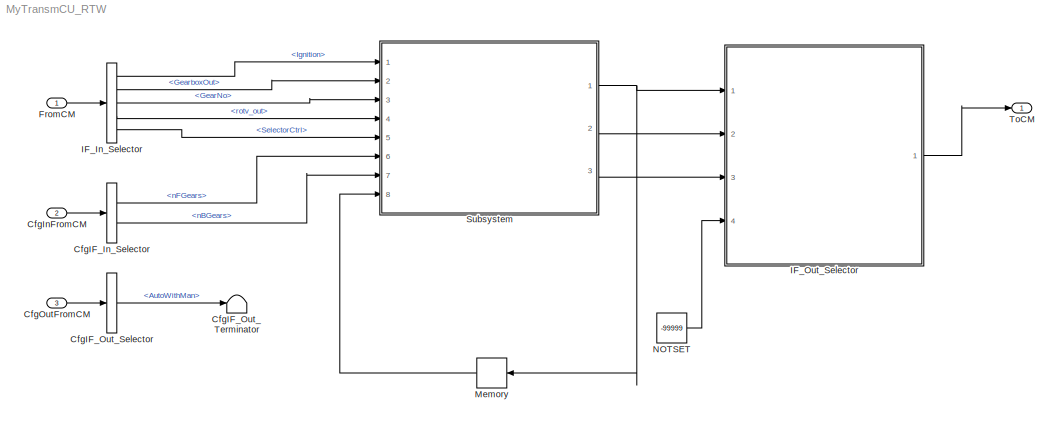
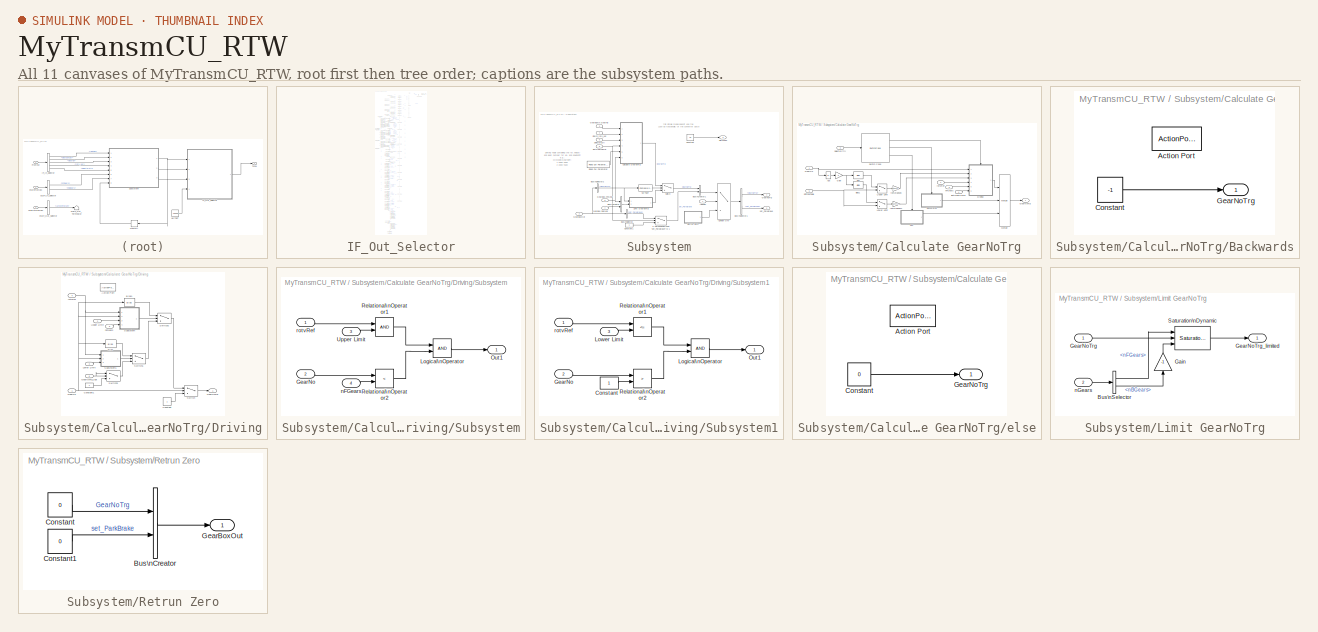
[diagram: thumbnail index - all 11 canvases of the model, root first then tree order]
MODEL MyTransmCU_RTW
KIND model
CONFIG InitFcn = vehicle = 'Car'; if ~length(which('cmself')), cmenv; end\nMyTransmCU_RTW_bus
CONFIG PreLoadFcn = vehicle = 'Car'; if ~length(which('cmself')), cmenv; end\nMyTransmCU_RTW_bus
BLOCK [BusSelector] CfgIF_In_Selector
  OutputSignals = Gearbox.GB0.nFGears,Gearbox.GB0.nBGears
  Ports = [1, 2]
  SID = 9
BLOCK [BusSelector] CfgIF_Out_Selector
  OutputSignals = AutoWithMan
  Ports = [1, 1]
  SID = 12
BLOCK [Terminator] CfgIF_Out_Terminator
  SID = 13
BLOCK [Inport] CfgInFromCM
  OutDataTypeStr = Bus: cmPTTransmCUCfgIn
  Port = 2
  SID = 8
BLOCK [Inport] CfgOutFromCM
  OutDataTypeStr = Bus: cmPTTransmCUCfgOut
  Port = 3
  SID = 11
BLOCK [Inport] FromCM
  OutDataTypeStr = Bus: cmPTTransmCUIn
  SID = 1
BLOCK [BusSelector] IF_In_Selector
  OutputSignals = Ignition,GearboxOut,GearboxIn.GB0.GearNo,GearboxIn.GB0.rotv_out,SelectorCtrl
  Ports = [1, 5]
  SID = 2
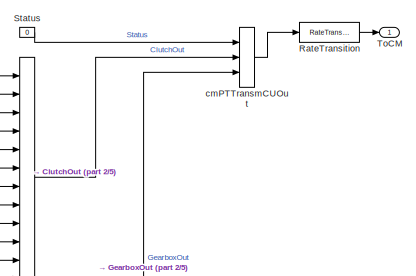
[diagram: IF_Out_Selector - part 1/5, top right region]
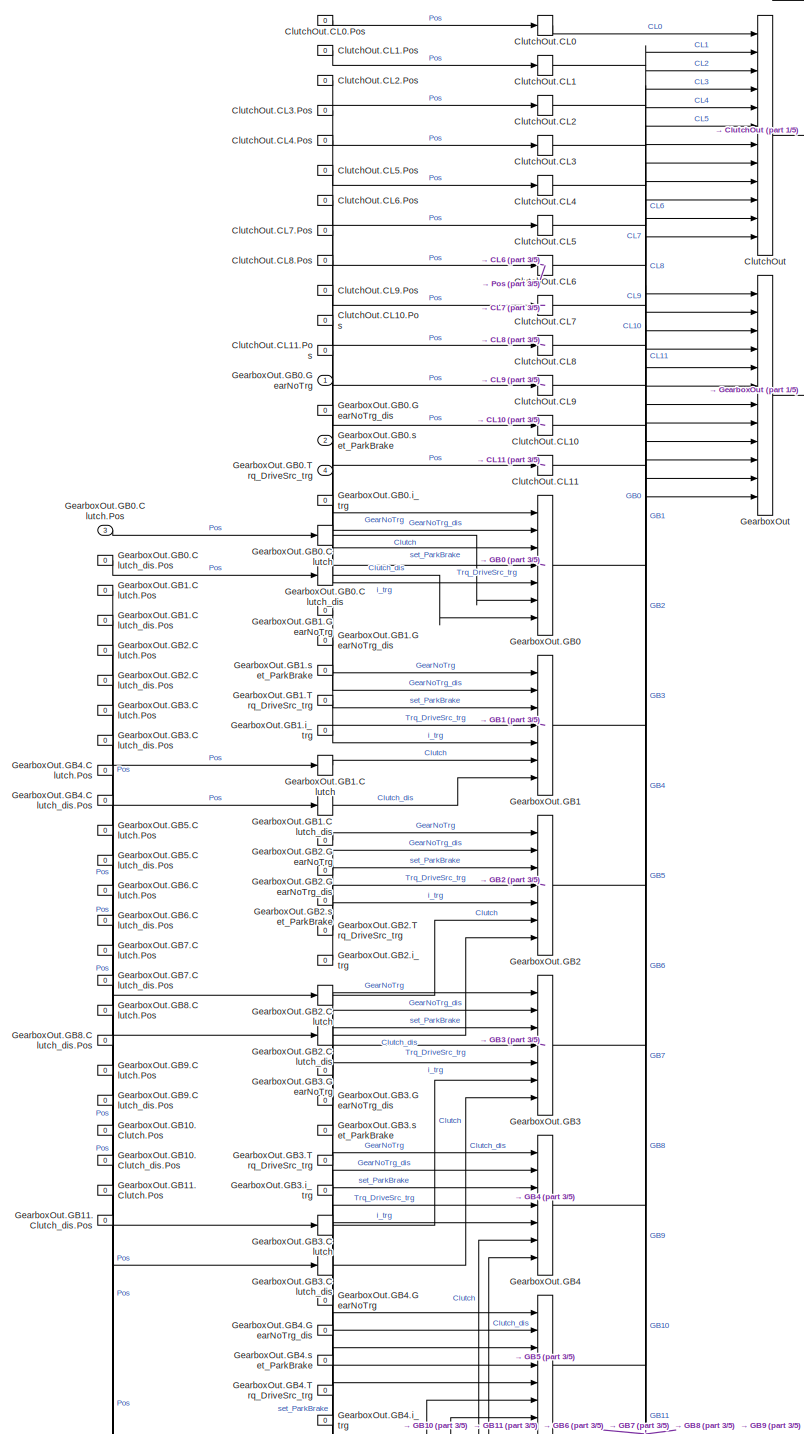
[diagram: IF_Out_Selector - part 2/5, top center region]
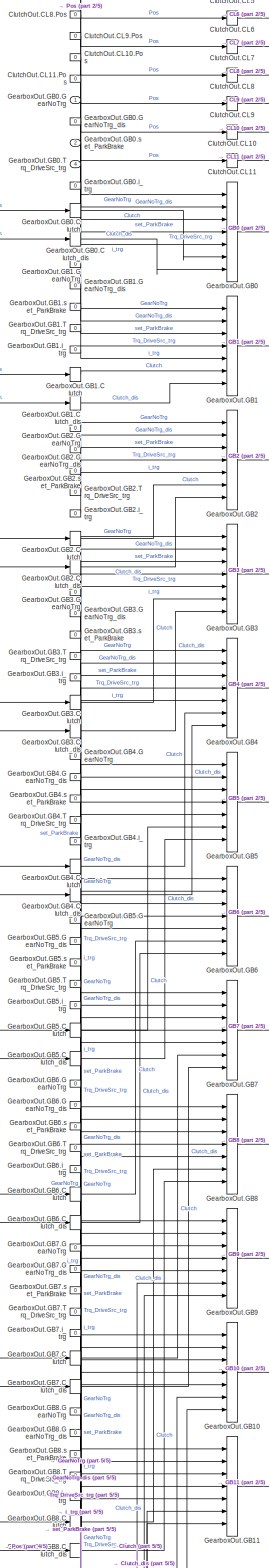
[diagram: IF_Out_Selector - part 3/5, central region]
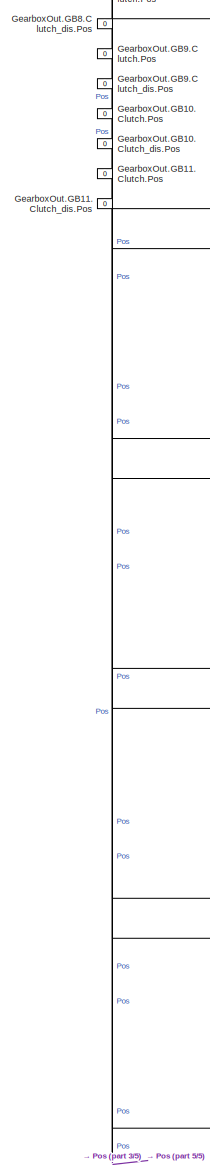
[diagram: IF_Out_Selector - part 4/5, middle left region]
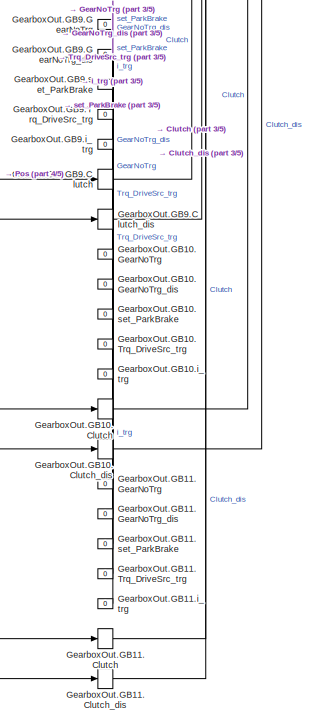
[diagram: IF_Out_Selector - part 5/5, bottom left region]
BLOCK [SubSystem] IF_Out_Selector
  OpenFcn = cmSignalSelect('SignalSelection_CB',gcb)
  Ports = [4, 1]
  RequestExecContextInheritance = off
  SID = 5
  UserData = DataTag0
  UserDataPersistent = on
BLOCK [BusCreator] IF_Out_Selector/ClutchOut
  InheritFromInputs = on
  Inputs = 12
  Ports = [12, 1]
  SID = 16
BLOCK [BusCreator] IF_Out_Selector/ClutchOut.CL0
  InheritFromInputs = on
  Inputs = 1
  Ports = [1, 1]
  SID = 17
BLOCK [Constant] IF_Out_Selector/ClutchOut.CL0.Pos
  SID = 18
  Value = 0
BLOCK [BusCreator] IF_Out_Selector/ClutchOut.CL1
  InheritFromInputs = on
  Inputs = 1
  Ports = [1, 1]
  SID = 19
BLOCK [Constant] IF_Out_Selector/ClutchOut.CL1.Pos
  SID = 20
  Value = 0
BLOCK [BusCreator] IF_Out_Selector/ClutchOut.CL10
  InheritFromInputs = on
  Inputs = 1
  Ports = [1, 1]
  SID = 37
BLOCK [Constant] IF_Out_Selector/ClutchOut.CL10.Pos
  SID = 38
  Value = 0
BLOCK [BusCreator] IF_Out_Selector/ClutchOut.CL11
  InheritFromInputs = on
  Inputs = 1
  Ports = [1, 1]
  SID = 39
BLOCK [Constant] IF_Out_Selector/ClutchOut.CL11.Pos
  SID = 40
  Value = 0
BLOCK [BusCreator] IF_Out_Selector/ClutchOut.CL2
  InheritFromInputs = on
  Inputs = 1
  Ports = [1, 1]
  SID = 21
BLOCK [Constant] IF_Out_Selector/ClutchOut.CL2.Pos
  SID = 22
  Value = 0
BLOCK [BusCreator] IF_Out_Selector/ClutchOut.CL3
  InheritFromInputs = on
  Inputs = 1
  Ports = [1, 1]
  SID = 23
BLOCK [Constant] IF_Out_Selector/ClutchOut.CL3.Pos
  SID = 24
  Value = 0
BLOCK [BusCreator] IF_Out_Selector/ClutchOut.CL4
  InheritFromInputs = on
  Inputs = 1
  Ports = [1, 1]
  SID = 25
BLOCK [Constant] IF_Out_Selector/ClutchOut.CL4.Pos
  SID = 26
  Value = 0
BLOCK [BusCreator] IF_Out_Selector/ClutchOut.CL5
  InheritFromInputs = on
  Inputs = 1
  Ports = [1, 1]
  SID = 27
BLOCK [Constant] IF_Out_Selector/ClutchOut.CL5.Pos
  SID = 28
  Value = 0
BLOCK [BusCreator] IF_Out_Selector/ClutchOut.CL6
  InheritFromInputs = on
  Inputs = 1
  Ports = [1, 1]
  SID = 29
BLOCK [Constant] IF_Out_Selector/ClutchOut.CL6.Pos
  SID = 30
  Value = 0
BLOCK [BusCreator] IF_Out_Selector/ClutchOut.CL7
  InheritFromInputs = on
  Inputs = 1
  Ports = [1, 1]
  SID = 31
BLOCK [Constant] IF_Out_Selector/ClutchOut.CL7.Pos
  SID = 32
  Value = 0
BLOCK [BusCreator] IF_Out_Selector/ClutchOut.CL8
  InheritFromInputs = on
  Inputs = 1
  Ports = [1, 1]
  SID = 33
BLOCK [Constant] IF_Out_Selector/ClutchOut.CL8.Pos
  SID = 34
  Value = 0
BLOCK [BusCreator] IF_Out_Selector/ClutchOut.CL9
  InheritFromInputs = on
  Inputs = 1
  Ports = [1, 1]
  SID = 35
BLOCK [Constant] IF_Out_Selector/ClutchOut.CL9.Pos
  SID = 36
  Value = 0
BLOCK [BusCreator] IF_Out_Selector/GearboxOut
  InheritFromInputs = on
  Inputs = 12
  Ports = [12, 1]
  SID = 41
BLOCK [BusCreator] IF_Out_Selector/GearboxOut.GB0
  InheritFromInputs = on
  Inputs = 7
  Ports = [7, 1]
  SID = 42
BLOCK [BusCreator] IF_Out_Selector/GearboxOut.GB0.Clutch
  InheritFromInputs = on
  Inputs = 1
  Ports = [1, 1]
  SID = 48
BLOCK [Inport] IF_Out_Selector/GearboxOut.GB0.Clutch.Pos
  Port = 3
  SID = 371
BLOCK [BusCreator] IF_Out_Selector/GearboxOut.GB0.Clutch_dis
  InheritFromInputs = on
  Inputs = 1
  Ports = [1, 1]
  SID = 50
BLOCK [Constant] IF_Out_Selector/GearboxOut.GB0.Clutch_dis.Pos
  SID = 51
  Value = 0
BLOCK [Inport] IF_Out_Selector/GearboxOut.GB0.GearNoTrg
  SID = 369
BLOCK [Constant] IF_Out_Selector/GearboxOut.GB0.GearNoTrg_dis
  SID = 44
  Value = 0
BLOCK [Inport] IF_Out_Selector/GearboxOut.GB0.Trq_DriveSrc_trg
  Port = 4
  SID = 372
BLOCK [Constant] IF_Out_Selector/GearboxOut.GB0.i_trg
  SID = 47
  Value = 0
BLOCK [Inport] IF_Out_Selector/GearboxOut.GB0.set_ParkBrake
  Port = 2
  SID = 370
BLOCK [BusCreator] IF_Out_Selector/GearboxOut.GB1
  InheritFromInputs = on
  Inputs = 7
  Ports = [7, 1]
  SID = 52
BLOCK [BusCreator] IF_Out_Selector/GearboxOut.GB1.Clutch
  InheritFromInputs = on
  Inputs = 1
  Ports = [1, 1]
  SID = 58
BLOCK [Constant] IF_Out_Selector/GearboxOut.GB1.Clutch.Pos
  SID = 59
  Value = 0
BLOCK [BusCreator] IF_Out_Selector/GearboxOut.GB1.Clutch_dis
  InheritFromInputs = on
  Inputs = 1
  Ports = [1, 1]
  SID = 60
BLOCK [Constant] IF_Out_Selector/GearboxOut.GB1.Clutch_dis.Pos
  SID = 61
  Value = 0
BLOCK [Constant] IF_Out_Selector/GearboxOut.GB1.GearNoTrg
  SID = 53
  Value = 0
BLOCK [Constant] IF_Out_Selector/GearboxOut.GB1.GearNoTrg_dis
  SID = 54
  Value = 0
BLOCK [Constant] IF_Out_Selector/GearboxOut.GB1.Trq_DriveSrc_trg
  SID = 56
  Value = 0
BLOCK [Constant] IF_Out_Selector/GearboxOut.GB1.i_trg
  SID = 57
  Value = 0
BLOCK [Constant] IF_Out_Selector/GearboxOut.GB1.set_ParkBrake
  SID = 55
  Value = 0
BLOCK [BusCreator] IF_Out_Selector/GearboxOut.GB10
  InheritFromInputs = on
  Inputs = 7
  Ports = [7, 1]
  SID = 142
BLOCK [BusCreator] IF_Out_Selector/GearboxOut.GB10.Clutch
  InheritFromInputs = on
  Inputs = 1
  Ports = [1, 1]
  SID = 148
BLOCK [Constant] IF_Out_Selector/GearboxOut.GB10.Clutch.Pos
  SID = 149
  Value = 0
BLOCK [BusCreator] IF_Out_Selector/GearboxOut.GB10.Clutch_dis
  InheritFromInputs = on
  Inputs = 1
  Ports = [1, 1]
  SID = 150
BLOCK [Constant] IF_Out_Selector/GearboxOut.GB10.Clutch_dis.Pos
  SID = 151
  Value = 0
BLOCK [Constant] IF_Out_Selector/GearboxOut.GB10.GearNoTrg
  SID = 143
  Value = 0
BLOCK [Constant] IF_Out_Selector/GearboxOut.GB10.GearNoTrg_dis
  SID = 144
  Value = 0
BLOCK [Constant] IF_Out_Selector/GearboxOut.GB10.Trq_DriveSrc_trg
  SID = 146
  Value = 0
BLOCK [Constant] IF_Out_Selector/GearboxOut.GB10.i_trg
  SID = 147
  Value = 0
BLOCK [Constant] IF_Out_Selector/GearboxOut.GB10.set_ParkBrake
  SID = 145
  Value = 0
BLOCK [BusCreator] IF_Out_Selector/GearboxOut.GB11
  InheritFromInputs = on
  Inputs = 7
  Ports = [7, 1]
  SID = 152
BLOCK [BusCreator] IF_Out_Selector/GearboxOut.GB11.Clutch
  InheritFromInputs = on
  Inputs = 1
  Ports = [1, 1]
  SID = 158
BLOCK [Constant] IF_Out_Selector/GearboxOut.GB11.Clutch.Pos
  SID = 159
  Value = 0
BLOCK [BusCreator] IF_Out_Selector/GearboxOut.GB11.Clutch_dis
  InheritFromInputs = on
  Inputs = 1
  Ports = [1, 1]
  SID = 160
BLOCK [Constant] IF_Out_Selector/GearboxOut.GB11.Clutch_dis.Pos
  SID = 161
  Value = 0
BLOCK [Constant] IF_Out_Selector/GearboxOut.GB11.GearNoTrg
  SID = 153
  Value = 0
BLOCK [Constant] IF_Out_Selector/GearboxOut.GB11.GearNoTrg_dis
  SID = 154
  Value = 0
BLOCK [Constant] IF_Out_Selector/GearboxOut.GB11.Trq_DriveSrc_trg
  SID = 156
  Value = 0
BLOCK [Constant] IF_Out_Selector/GearboxOut.GB11.i_trg
  SID = 157
  Value = 0
BLOCK [Constant] IF_Out_Selector/GearboxOut.GB11.set_ParkBrake
  SID = 155
  Value = 0
BLOCK [BusCreator] IF_Out_Selector/GearboxOut.GB2
  InheritFromInputs = on
  Inputs = 7
  Ports = [7, 1]
  SID = 62
BLOCK [BusCreator] IF_Out_Selector/GearboxOut.GB2.Clutch
  InheritFromInputs = on
  Inputs = 1
  Ports = [1, 1]
  SID = 68
BLOCK [Constant] IF_Out_Selector/GearboxOut.GB2.Clutch.Pos
  SID = 69
  Value = 0
BLOCK [BusCreator] IF_Out_Selector/GearboxOut.GB2.Clutch_dis
  InheritFromInputs = on
  Inputs = 1
  Ports = [1, 1]
  SID = 70
BLOCK [Constant] IF_Out_Selector/GearboxOut.GB2.Clutch_dis.Pos
  SID = 71
  Value = 0
BLOCK [Constant] IF_Out_Selector/GearboxOut.GB2.GearNoTrg
  SID = 63
  Value = 0
BLOCK [Constant] IF_Out_Selector/GearboxOut.GB2.GearNoTrg_dis
  SID = 64
  Value = 0
BLOCK [Constant] IF_Out_Selector/GearboxOut.GB2.Trq_DriveSrc_trg
  SID = 66
  Value = 0
BLOCK [Constant] IF_Out_Selector/GearboxOut.GB2.i_trg
  SID = 67
  Value = 0
BLOCK [Constant] IF_Out_Selector/GearboxOut.GB2.set_ParkBrake
  SID = 65
  Value = 0
BLOCK [BusCreator] IF_Out_Selector/GearboxOut.GB3
  InheritFromInputs = on
  Inputs = 7
  Ports = [7, 1]
  SID = 72
BLOCK [BusCreator] IF_Out_Selector/GearboxOut.GB3.Clutch
  InheritFromInputs = on
  Inputs = 1
  Ports = [1, 1]
  SID = 78
BLOCK [Constant] IF_Out_Selector/GearboxOut.GB3.Clutch.Pos
  SID = 79
  Value = 0
BLOCK [BusCreator] IF_Out_Selector/GearboxOut.GB3.Clutch_dis
  InheritFromInputs = on
  Inputs = 1
  Ports = [1, 1]
  SID = 80
BLOCK [Constant] IF_Out_Selector/GearboxOut.GB3.Clutch_dis.Pos
  SID = 81
  Value = 0
BLOCK [Constant] IF_Out_Selector/GearboxOut.GB3.GearNoTrg
  SID = 73
  Value = 0
BLOCK [Constant] IF_Out_Selector/GearboxOut.GB3.GearNoTrg_dis
  SID = 74
  Value = 0
BLOCK [Constant] IF_Out_Selector/GearboxOut.GB3.Trq_DriveSrc_trg
  SID = 76
  Value = 0
BLOCK [Constant] IF_Out_Selector/GearboxOut.GB3.i_trg
  SID = 77
  Value = 0
BLOCK [Constant] IF_Out_Selector/GearboxOut.GB3.set_ParkBrake
  SID = 75
  Value = 0
BLOCK [BusCreator] IF_Out_Selector/GearboxOut.GB4
  InheritFromInputs = on
  Inputs = 7
  Ports = [7, 1]
  SID = 82
BLOCK [BusCreator] IF_Out_Selector/GearboxOut.GB4.Clutch
  InheritFromInputs = on
  Inputs = 1
  Ports = [1, 1]
  SID = 88
BLOCK [Constant] IF_Out_Selector/GearboxOut.GB4.Clutch.Pos
  SID = 89
  Value = 0
BLOCK [BusCreator] IF_Out_Selector/GearboxOut.GB4.Clutch_dis
  InheritFromInputs = on
  Inputs = 1
  Ports = [1, 1]
  SID = 90
BLOCK [Constant] IF_Out_Selector/GearboxOut.GB4.Clutch_dis.Pos
  SID = 91
  Value = 0
BLOCK [Constant] IF_Out_Selector/GearboxOut.GB4.GearNoTrg
  SID = 83
  Value = 0
BLOCK [Constant] IF_Out_Selector/GearboxOut.GB4.GearNoTrg_dis
  SID = 84
  Value = 0
BLOCK [Constant] IF_Out_Selector/GearboxOut.GB4.Trq_DriveSrc_trg
  SID = 86
  Value = 0
BLOCK [Constant] IF_Out_Selector/GearboxOut.GB4.i_trg
  SID = 87
  Value = 0
BLOCK [Constant] IF_Out_Selector/GearboxOut.GB4.set_ParkBrake
  SID = 85
  Value = 0
BLOCK [BusCreator] IF_Out_Selector/GearboxOut.GB5
  InheritFromInputs = on
  Inputs = 7
  Ports = [7, 1]
  SID = 92
BLOCK [BusCreator] IF_Out_Selector/GearboxOut.GB5.Clutch
  InheritFromInputs = on
  Inputs = 1
  Ports = [1, 1]
  SID = 98
BLOCK [Constant] IF_Out_Selector/GearboxOut.GB5.Clutch.Pos
  SID = 99
  Value = 0
BLOCK [BusCreator] IF_Out_Selector/GearboxOut.GB5.Clutch_dis
  InheritFromInputs = on
  Inputs = 1
  Ports = [1, 1]
  SID = 100
BLOCK [Constant] IF_Out_Selector/GearboxOut.GB5.Clutch_dis.Pos
  SID = 101
  Value = 0
BLOCK [Constant] IF_Out_Selector/GearboxOut.GB5.GearNoTrg
  SID = 93
  Value = 0
BLOCK [Constant] IF_Out_Selector/GearboxOut.GB5.GearNoTrg_dis
  SID = 94
  Value = 0
BLOCK [Constant] IF_Out_Selector/GearboxOut.GB5.Trq_DriveSrc_trg
  SID = 96
  Value = 0
BLOCK [Constant] IF_Out_Selector/GearboxOut.GB5.i_trg
  SID = 97
  Value = 0
BLOCK [Constant] IF_Out_Selector/GearboxOut.GB5.set_ParkBrake
  SID = 95
  Value = 0
BLOCK [BusCreator] IF_Out_Selector/GearboxOut.GB6
  InheritFromInputs = on
  Inputs = 7
  Ports = [7, 1]
  SID = 102
BLOCK [BusCreator] IF_Out_Selector/GearboxOut.GB6.Clutch
  InheritFromInputs = on
  Inputs = 1
  Ports = [1, 1]
  SID = 108
BLOCK [Constant] IF_Out_Selector/GearboxOut.GB6.Clutch.Pos
  SID = 109
  Value = 0
BLOCK [BusCreator] IF_Out_Selector/GearboxOut.GB6.Clutch_dis
  InheritFromInputs = on
  Inputs = 1
  Ports = [1, 1]
  SID = 110
BLOCK [Constant] IF_Out_Selector/GearboxOut.GB6.Clutch_dis.Pos
  SID = 111
  Value = 0
BLOCK [Constant] IF_Out_Selector/GearboxOut.GB6.GearNoTrg
  SID = 103
  Value = 0
BLOCK [Constant] IF_Out_Selector/GearboxOut.GB6.GearNoTrg_dis
  SID = 104
  Value = 0
BLOCK [Constant] IF_Out_Selector/GearboxOut.GB6.Trq_DriveSrc_trg
  SID = 106
  Value = 0
BLOCK [Constant] IF_Out_Selector/GearboxOut.GB6.i_trg
  SID = 107
  Value = 0
BLOCK [Constant] IF_Out_Selector/GearboxOut.GB6.set_ParkBrake
  SID = 105
  Value = 0
BLOCK [BusCreator] IF_Out_Selector/GearboxOut.GB7
  InheritFromInputs = on
  Inputs = 7
  Ports = [7, 1]
  SID = 112
BLOCK [BusCreator] IF_Out_Selector/GearboxOut.GB7.Clutch
  InheritFromInputs = on
  Inputs = 1
  Ports = [1, 1]
  SID = 118
BLOCK [Constant] IF_Out_Selector/GearboxOut.GB7.Clutch.Pos
  SID = 119
  Value = 0
BLOCK [BusCreator] IF_Out_Selector/GearboxOut.GB7.Clutch_dis
  InheritFromInputs = on
  Inputs = 1
  Ports = [1, 1]
  SID = 120
BLOCK [Constant] IF_Out_Selector/GearboxOut.GB7.Clutch_dis.Pos
  SID = 121
  Value = 0
BLOCK [Constant] IF_Out_Selector/GearboxOut.GB7.GearNoTrg
  SID = 113
  Value = 0
BLOCK [Constant] IF_Out_Selector/GearboxOut.GB7.GearNoTrg_dis
  SID = 114
  Value = 0
BLOCK [Constant] IF_Out_Selector/GearboxOut.GB7.Trq_DriveSrc_trg
  SID = 116
  Value = 0
BLOCK [Constant] IF_Out_Selector/GearboxOut.GB7.i_trg
  SID = 117
  Value = 0
BLOCK [Constant] IF_Out_Selector/GearboxOut.GB7.set_ParkBrake
  SID = 115
  Value = 0
BLOCK [BusCreator] IF_Out_Selector/GearboxOut.GB8
  InheritFromInputs = on
  Inputs = 7
  Ports = [7, 1]
  SID = 122
BLOCK [BusCreator] IF_Out_Selector/GearboxOut.GB8.Clutch
  InheritFromInputs = on
  Inputs = 1
  Ports = [1, 1]
  SID = 128
BLOCK [Constant] IF_Out_Selector/GearboxOut.GB8.Clutch.Pos
  SID = 129
  Value = 0
BLOCK [BusCreator] IF_Out_Selector/GearboxOut.GB8.Clutch_dis
  InheritFromInputs = on
  Inputs = 1
  Ports = [1, 1]
  SID = 130
BLOCK [Constant] IF_Out_Selector/GearboxOut.GB8.Clutch_dis.Pos
  SID = 131
  Value = 0
BLOCK [Constant] IF_Out_Selector/GearboxOut.GB8.GearNoTrg
  SID = 123
  Value = 0
BLOCK [Constant] IF_Out_Selector/GearboxOut.GB8.GearNoTrg_dis
  SID = 124
  Value = 0
BLOCK [Constant] IF_Out_Selector/GearboxOut.GB8.Trq_DriveSrc_trg
  SID = 126
  Value = 0
BLOCK [Constant] IF_Out_Selector/GearboxOut.GB8.i_trg
  SID = 127
  Value = 0
BLOCK [Constant] IF_Out_Selector/GearboxOut.GB8.set_ParkBrake
  SID = 125
  Value = 0
BLOCK [BusCreator] IF_Out_Selector/GearboxOut.GB9
  InheritFromInputs = on
  Inputs = 7
  Ports = [7, 1]
  SID = 132
BLOCK [BusCreator] IF_Out_Selector/GearboxOut.GB9.Clutch
  InheritFromInputs = on
  Inputs = 1
  Ports = [1, 1]
  SID = 138
BLOCK [Constant] IF_Out_Selector/GearboxOut.GB9.Clutch.Pos
  SID = 139
  Value = 0
BLOCK [BusCreator] IF_Out_Selector/GearboxOut.GB9.Clutch_dis
  InheritFromInputs = on
  Inputs = 1
  Ports = [1, 1]
  SID = 140
BLOCK [Constant] IF_Out_Selector/GearboxOut.GB9.Clutch_dis.Pos
  SID = 141
  Value = 0
BLOCK [Constant] IF_Out_Selector/GearboxOut.GB9.GearNoTrg
  SID = 133
  Value = 0
BLOCK [Constant] IF_Out_Selector/GearboxOut.GB9.GearNoTrg_dis
  SID = 134
  Value = 0
BLOCK [Constant] IF_Out_Selector/GearboxOut.GB9.Trq_DriveSrc_trg
  SID = 136
  Value = 0
BLOCK [Constant] IF_Out_Selector/GearboxOut.GB9.i_trg
  SID = 137
  Value = 0
BLOCK [Constant] IF_Out_Selector/GearboxOut.GB9.set_ParkBrake
  SID = 135
  Value = 0
BLOCK [RateTransition] IF_Out_Selector/RateTransition
  OutPortSampleTime = str2num(get_param(bdroot,'FixedStep'))
  SID = 6
BLOCK [Constant] IF_Out_Selector/Status
  SID = 15
  Value = 0
BLOCK [Outport] IF_Out_Selector/ToCM
  SID = 7
BLOCK [BusCreator] IF_Out_Selector/cmPTTransmCUOut
  InheritFromInputs = on
  Inputs = 3
  Ports = [3, 1]
  SID = 14
BLOCK [Memory] Memory
  SID = 268
BLOCK [Constant] NOTSET
  SID = 269
  Value = -99999
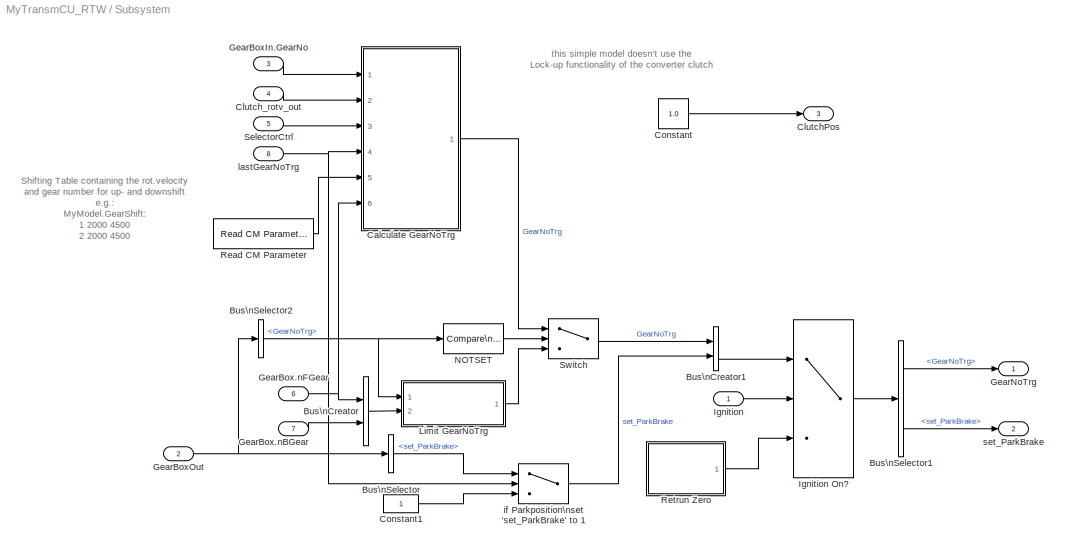
BLOCK [SubSystem] Subsystem
  Ports = [8, 3]
  RequestExecContextInheritance = off
  SID = 270
BLOCK [BusCreator] Subsystem/Bus\nCreator
  DisplayOption = bar
  InheritFromInputs = on
  Inputs = 2
  Ports = [2, 1]
  SID = 279
BLOCK [BusCreator] Subsystem/Bus\nCreator1
  DisplayOption = bar
  InheritFromInputs = on
  Inputs = 2
  Ports = [2, 1]
  SID = 280
BLOCK [BusSelector] Subsystem/Bus\nSelector
  NameLocation = top
  OutputSignals = GB0.set_ParkBrake
  Ports = [1, 1]
  SID = 281
BLOCK [BusSelector] Subsystem/Bus\nSelector1
  OutputSignals = GearNoTrg,set_ParkBrake
  Ports = [1, 2]
  SID = 282
BLOCK [BusSelector] Subsystem/Bus\nSelector2
  OutputSignals = GB0.GearNoTrg
  Ports = [1, 1]
  SID = 283
BLOCK [SubSystem] Subsystem/Calculate GearNoTrg
  Ports = [6, 1]
  RequestExecContextInheritance = off
  SID = 284
  TreatAsAtomicUnit = on
BLOCK [Abs] Subsystem/Calculate GearNoTrg/Abs
  SID = 291
  SaturateOnIntegerOverflow = off
BLOCK [SubSystem] Subsystem/Calculate GearNoTrg/Backwards
  Ports = [0, 1, 0, 0, 0, 0, 0, 1]
  RequestExecContextInheritance = off
  SID = 292
  TreatAsAtomicUnit = on
BLOCK [ActionPort] Subsystem/Calculate GearNoTrg/Backwards/Action Port
  SID = 293
BLOCK [Constant] Subsystem/Calculate GearNoTrg/Backwards/Constant
  SID = 294
  Value = -1
BLOCK [Outport] Subsystem/Calculate GearNoTrg/Backwards/GearNoTrg
  InitialOutput = -1
  SID = 295
  VectorParamsAs1DForOutWhenUnconnected = off
BLOCK [Bias] Subsystem/Calculate GearNoTrg/Bias
  Bias = -1
  SID = 296
  SaturateOnIntegerOverflow = off
BLOCK [Bias] Subsystem/Calculate GearNoTrg/Bias1
  Bias = -2
  SID = 297
  SaturateOnIntegerOverflow = off
BLOCK [SubSystem] Subsystem/Calculate GearNoTrg/Driving
  Ports = [6, 1, 0, 0, 0, 0, 0, 1]
  RequestExecContextInheritance = off
  SID = 298
  TreatAsAtomicUnit = on
BLOCK [ActionPort] Subsystem/Calculate GearNoTrg/Driving/Action Port
  SID = 305
BLOCK [Bias] Subsystem/Calculate GearNoTrg/Driving/Bias
  Bias = -1
  SID = 306
  SaturateOnIntegerOverflow = off
BLOCK [Bias] Subsystem/Calculate GearNoTrg/Driving/Bias1
  Bias = 1
  SID = 307
  SaturateOnIntegerOverflow = off
BLOCK [Constant] Subsystem/Calculate GearNoTrg/Driving/Constant
  SID = 308
BLOCK [Constant] Subsystem/Calculate GearNoTrg/Driving/Constant1
  SID = 309
BLOCK [Inport] Subsystem/Calculate GearNoTrg/Driving/GearNo
  SID = 299
BLOCK [Outport] Subsystem/Calculate GearNoTrg/Driving/GearNoTrg
  SID = 332
  VectorParamsAs1DForOutWhenUnconnected = off
BLOCK [Inport] Subsystem/Calculate GearNoTrg/Driving/GearNoTrg_last
  Port = 6
  SID = 304
BLOCK [Inport] Subsystem/Calculate GearNoTrg/Driving/Lower Limit
  Port = 3
  SID = 301
BLOCK [SubSystem] Subsystem/Calculate GearNoTrg/Driving/Subsystem
  Ports = [4, 1]
  RequestExecContextInheritance = off
  SID = 310
BLOCK [Inport] Subsystem/Calculate GearNoTrg/Driving/Subsystem/GearNo
  Port = 2
  SID = 312
BLOCK [Logic] Subsystem/Calculate GearNoTrg/Driving/Subsystem/Logical\nOperator
  AllPortsSameDT = off
  OutDataTypeStr = boolean
  Ports = [2, 1]
  SID = 315
BLOCK [Outport] Subsystem/Calculate GearNoTrg/Driving/Subsystem/Out1
  SID = 318
  VectorParamsAs1DForOutWhenUnconnected = off
BLOCK [RelationalOperator] Subsystem/Calculate GearNoTrg/Driving/Subsystem/Relational\nOperator1
  InputSameDT = off
  OutDataTypeStr = boolean
  Ports = [2, 1]
  SID = 316
BLOCK [RelationalOperator] Subsystem/Calculate GearNoTrg/Driving/Subsystem/Relational\nOperator2
  InputSameDT = off
  Operator = <
  OutDataTypeStr = boolean
  Ports = [2, 1]
  SID = 317
BLOCK [Inport] Subsystem/Calculate GearNoTrg/Driving/Subsystem/Upper Limit
  Port = 3
  SID = 313
BLOCK [Inport] Subsystem/Calculate GearNoTrg/Driving/Subsystem/nFGears
  Port = 4
  SID = 314
BLOCK [Inport] Subsystem/Calculate GearNoTrg/Driving/Subsystem/rotvRef
  SID = 311
BLOCK [SubSystem] Subsystem/Calculate GearNoTrg/Driving/Subsystem1
  Ports = [3, 1]
  RequestExecContextInheritance = off
  SID = 319
BLOCK [Constant] Subsystem/Calculate GearNoTrg/Driving/Subsystem1/Constant
  SID = 323
BLOCK [Inport] Subsystem/Calculate GearNoTrg/Driving/Subsystem1/GearNo
  Port = 2
  SID = 321
BLOCK [Logic] Subsystem/Calculate GearNoTrg/Driving/Subsystem1/Logical\nOperator
  AllPortsSameDT = off
  OutDataTypeStr = boolean
  Ports = [2, 1]
  SID = 324
BLOCK [Inport] Subsystem/Calculate GearNoTrg/Driving/Subsystem1/Lower Limit
  Port = 3
  SID = 322
BLOCK [Outport] Subsystem/Calculate GearNoTrg/Driving/Subsystem1/Out1
  SID = 327
  VectorParamsAs1DForOutWhenUnconnected = off
BLOCK [RelationalOperator] Subsystem/Calculate GearNoTrg/Driving/Subsystem1/Relational\nOperator1
  InputSameDT = off
  Operator = <=
  OutDataTypeStr = boolean
  Ports = [2, 1]
  SID = 325
BLOCK [RelationalOperator] Subsystem/Calculate GearNoTrg/Driving/Subsystem1/Relational\nOperator2
  InputSameDT = off
  Operator = >
  OutDataTypeStr = boolean
  Ports = [2, 1]
  SID = 326
BLOCK [Inport] Subsystem/Calculate GearNoTrg/Driving/Subsystem1/rotvRef
  SID = 320
BLOCK [Switch] Subsystem/Calculate GearNoTrg/Driving/Switch
  Criteria = u2 ~= 0
  InputSameDT = off
  SID = 328
  SaturateOnIntegerOverflow = off
BLOCK [Switch] Subsystem/Calculate GearNoTrg/Driving/Switch1
  Criteria = u2 ~= 0
  InputSameDT = off
  SID = 329
  SaturateOnIntegerOverflow = off
BLOCK [Switch] Subsystem/Calculate GearNoTrg/Driving/Switch2
  Criteria = u2 ~= 0
  InputSameDT = off
  SID = 330
  SaturateOnIntegerOverflow = off
BLOCK [Switch] Subsystem/Calculate GearNoTrg/Driving/Switch3
  Criteria = u2 > Threshold
  InputSameDT = off
  SID = 331
  SaturateOnIntegerOverflow = off
BLOCK [Inport] Subsystem/Calculate GearNoTrg/Driving/Upper Limit
  Port = 2
  SID = 300
BLOCK [Inport] Subsystem/Calculate GearNoTrg/Driving/nFGears
  Port = 5
  SID = 303
BLOCK [Inport] Subsystem/Calculate GearNoTrg/Driving/rotvRef
  Port = 4
  SID = 302
BLOCK [Gain] Subsystem/Calculate GearNoTrg/Gain
  Gain = 3
  SID = 333
BLOCK [Inport] Subsystem/Calculate GearNoTrg/GearNo
  SID = 285
BLOCK [Outport] Subsystem/Calculate GearNoTrg/GearNoTrg
  SID = 344
  VectorParamsAs1DForOutWhenUnconnected = off
BLOCK [MultiPortSwitch] Subsystem/Calculate GearNoTrg/Lower Limit
  DataPortOrder = Zero-based contiguous
  InputSameDT = off
  Inputs = 1
  Ports = [2, 1]
  SID = 334
  SaturateOnIntegerOverflow = off
  zeroidx = on
BLOCK [Merge] Subsystem/Calculate GearNoTrg/Merge
  Inputs = 3
  Ports = [3, 1]
  SID = 335
BLOCK [Inport] Subsystem/Calculate GearNoTrg/SelectorCtrl
  Port = 3
  SID = 287
BLOCK [Inport] Subsystem/Calculate GearNoTrg/ShiftingTable
  Port = 5
  SID = 289
BLOCK [SwitchCase] Subsystem/Calculate GearNoTrg/Switch Case
  CaseConditions = {1,-1}
  Ports = [1, 3]
  SID = 336
BLOCK [MultiPortSwitch] Subsystem/Calculate GearNoTrg/Upper Limit
  DataPortOrder = Zero-based contiguous
  InputSameDT = off
  Inputs = 1
  Ports = [2, 1]
  SID = 337
  SaturateOnIntegerOverflow = off
  zeroidx = on
BLOCK [SubSystem] Subsystem/Calculate GearNoTrg/else
  Ports = [0, 1, 0, 0, 0, 0, 0, 1]
  RequestExecContextInheritance = off
  SID = 338
  TreatAsAtomicUnit = on
BLOCK [ActionPort] Subsystem/Calculate GearNoTrg/else/Action Port
  SID = 339
BLOCK [Constant] Subsystem/Calculate GearNoTrg/else/Constant
  SID = 340
  Value = 0
BLOCK [Outport] Subsystem/Calculate GearNoTrg/else/GearNoTrg
  InitialOutput = 0
  SID = 341
  VectorParamsAs1DForOutWhenUnconnected = off
BLOCK [Inport] Subsystem/Calculate GearNoTrg/lastGearNoTrg
  Port = 4
  SID = 288
BLOCK [Inport] Subsystem/Calculate GearNoTrg/nFGears
  Port = 6
  SID = 290
BLOCK [Inport] Subsystem/Calculate GearNoTrg/rotvRef
  Port = 2
  SID = 286
BLOCK [Gain] Subsystem/Calculate GearNoTrg/rpm2radsec
  Gain = 0.104719755
  SID = 342
BLOCK [Gain] Subsystem/Calculate GearNoTrg/rpm2radsec1
  Gain = 0.104719755
  SID = 343
BLOCK [Outport] Subsystem/ClutchPos
  Port = 3
  SID = 366
  VectorParamsAs1DForOutWhenUnconnected = off
BLOCK [Inport] Subsystem/Clutch_rotv_out
  Port = 4
  SID = 274
BLOCK [Constant] Subsystem/Constant
  SID = 345
  Value = 1.0
BLOCK [Constant] Subsystem/Constant1
  SID = 346
BLOCK [Inport] Subsystem/GearBox.nBGear
  Port = 7
  SID = 277
BLOCK [Inport] Subsystem/GearBox.nFGear
  Port = 6
  SID = 276
BLOCK [Inport] Subsystem/GearBoxIn.GearNo
  Port = 3
  SID = 273
BLOCK [Inport] Subsystem/GearBoxOut
  Port = 2
  SID = 272
BLOCK [Outport] Subsystem/GearNoTrg
  SID = 364
  VectorParamsAs1DForOutWhenUnconnected = off
BLOCK [Inport] Subsystem/Ignition
  SID = 271
BLOCK [Switch] Subsystem/Ignition On?
  Criteria = u2 ~= 0
  InputSameDT = off
  SID = 347
  SaturateOnIntegerOverflow = off
BLOCK [SubSystem] Subsystem/Limit GearNoTrg
  Ports = [2, 1]
  RequestExecContextInheritance = off
  SID = 348
BLOCK [BusSelector] Subsystem/Limit GearNoTrg/Bus\nSelector
  OutputSignals = nFGears,nBGears
  Ports = [1, 2]
  SID = 351
BLOCK [Gain] Subsystem/Limit GearNoTrg/Gain
  Gain = -1
  NameLocation = right
  SID = 352
BLOCK [Inport] Subsystem/Limit GearNoTrg/GearNoTrg
  SID = 349
BLOCK [Outport] Subsystem/Limit GearNoTrg/GearNoTrg_limited
  SID = 354
  VectorParamsAs1DForOutWhenUnconnected = off
BLOCK [Reference] Subsystem/Limit GearNoTrg/Saturation\nDynamic  REF=simulink/Discontinuities/Saturation\nDynamic
  DoSatur = off
  LockScale = off
  OutDataType = sfix(16)
  OutDataTypeStr = Inherit: Same as second input
  OutMax = []
  OutMin = []
  OutScaling = 2^-10
  OutputDataTypeScalingMode = Same as second input
  Ports = [3, 1]
  RTWMemSecDataConstants = Inherit from model
  RTWMemSecDataInternal = Inherit from model
  RTWMemSecDataParameters = Inherit from model
  RTWMemSecFuncExecute = Inherit from model
  RTWMemSecFuncInitTerm = Inherit from model
  RndMeth = Floor
  SID = 353
  SourceBlock = simulink/Discontinuities/Saturation\nDynamic
  SourceProductBaseCode = SL
  SourceType = Saturation Dynamic
BLOCK [Inport] Subsystem/Limit GearNoTrg/nGears
  Port = 2
  SID = 350
BLOCK [Reference] Subsystem/NOTSET  REF=simulink/Logic and Bit\nOperations/Compare\nTo Constant
  OutDataTypeStr = uint8
  Ports = [1, 1]
  RTWMemSecDataConstants = Inherit from model
  RTWMemSecDataInternal = Inherit from model
  RTWMemSecDataParameters = Inherit from model
  RTWMemSecFuncExecute = Inherit from model
  RTWMemSecFuncInitTerm = Inherit from model
  SID = 355
  SourceBlock = simulink/Logic and Bit\nOperations/Compare\nTo Constant
  SourceProductBaseCode = SL
  SourceType = Compare To Constant
  ZeroCross = on
  const = -99999
  relop = ==
BLOCK [Reference] Subsystem/Read CM Parameter  REF=CarMaker4SL/Read CM Parameter
  MultiThreadCoSim = auto
  Ports = [0, 1]
  SID = 356
  SourceBlock = CarMaker4SL/Read CM Parameter
  SourceProductName = CarMaker4SL
  SourceType = Read CarMaker Info File Parameter
  xdefaults = 0
  xfile = Vehicle
  xkey = MyModel.GearShift
  xmuxed = on
  xnout = 80
  xstime = Continuous
BLOCK [SubSystem] Subsystem/Retrun Zero
  Ports = [0, 1]
  RequestExecContextInheritance = off
  SID = 357
  TreatAsAtomicUnit = on
BLOCK [BusCreator] Subsystem/Retrun Zero/Bus\nCreator
  DisplayOption = bar
  InheritFromInputs = on
  Inputs = 2
  Ports = [2, 1]
  SID = 358
BLOCK [Constant] Subsystem/Retrun Zero/Constant
  SID = 359
  Value = 0
BLOCK [Constant] Subsystem/Retrun Zero/Constant1
  SID = 360
  Value = 0
BLOCK [Outport] Subsystem/Retrun Zero/GearBoxOut
  SID = 361
  VectorParamsAs1DForOutWhenUnconnected = off
BLOCK [Inport] Subsystem/SelectorCtrl
  Port = 5
  SID = 275
BLOCK [Switch] Subsystem/Switch
  Criteria = u2 ~= 0
  InputSameDT = off
  SID = 362
  SaturateOnIntegerOverflow = off
BLOCK [Switch] Subsystem/if Parkposition\nset 'set_ParkBrake' to 1
  Criteria = u2 ~= 0
  InputSameDT = off
  SID = 363
  SaturateOnIntegerOverflow = off
BLOCK [Inport] Subsystem/lastGearNoTrg
  Port = 8
  SID = 278
BLOCK [Outport] Subsystem/set_ParkBrake
  Port = 2
  SID = 365
  VectorParamsAs1DForOutWhenUnconnected = off
BLOCK [Outport] ToCM
  OutDataTypeStr = Bus: cmPTTransmCUOut
  SID = 4
ANNOTATION Subsystem: Shifting Table containing the rot.velocity\nand gear number for up- and downshift\ne.g.:\nMyModel.GearShift:\n 1 2000 4500\n 2 2000 4500\n 3 2000 4500\n 4 2000 4500\n 5 2000 5000
ANNOTATION Subsystem: this simple model doesn't use the\nLock-up functionality of the converter clutch
LINE CfgIF_In_Selector:1 -> Subsystem:6
LINE CfgIF_In_Selector:2 -> Subsystem:7
LINE CfgIF_Out_Selector:1 -> CfgIF_Out_Terminator:1
LINE CfgInFromCM:1 -> CfgIF_In_Selector:1
LINE CfgOutFromCM:1 -> CfgIF_Out_Selector:1
LINE FromCM:1 -> IF_In_Selector:1
LINE IF_In_Selector:1 -> Subsystem:1
LINE IF_In_Selector:2 -> Subsystem:2
LINE IF_In_Selector:3 -> Subsystem:3
LINE IF_In_Selector:4 -> Subsystem:4
LINE IF_In_Selector:5 -> Subsystem:5
LINE IF_Out_Selector/ClutchOut.CL0.Pos:1 -> IF_Out_Selector/ClutchOut.CL0:1
LINE IF_Out_Selector/ClutchOut.CL0:1 -> IF_Out_Selector/ClutchOut:1
LINE IF_Out_Selector/ClutchOut.CL1.Pos:1 -> IF_Out_Selector/ClutchOut.CL1:1
LINE IF_Out_Selector/ClutchOut.CL10.Pos:1 -> IF_Out_Selector/ClutchOut.CL10:1
LINE IF_Out_Selector/ClutchOut.CL10:1 -> IF_Out_Selector/ClutchOut:11
LINE IF_Out_Selector/ClutchOut.CL11.Pos:1 -> IF_Out_Selector/ClutchOut.CL11:1
LINE IF_Out_Selector/ClutchOut.CL11:1 -> IF_Out_Selector/ClutchOut:12
LINE IF_Out_Selector/ClutchOut.CL1:1 -> IF_Out_Selector/ClutchOut:2
LINE IF_Out_Selector/ClutchOut.CL2.Pos:1 -> IF_Out_Selector/ClutchOut.CL2:1
LINE IF_Out_Selector/ClutchOut.CL2:1 -> IF_Out_Selector/ClutchOut:3
LINE IF_Out_Selector/ClutchOut.CL3.Pos:1 -> IF_Out_Selector/ClutchOut.CL3:1
LINE IF_Out_Selector/ClutchOut.CL3:1 -> IF_Out_Selector/ClutchOut:4
LINE IF_Out_Selector/ClutchOut.CL4.Pos:1 -> IF_Out_Selector/ClutchOut.CL4:1
LINE IF_Out_Selector/ClutchOut.CL4:1 -> IF_Out_Selector/ClutchOut:5
LINE IF_Out_Selector/ClutchOut.CL5.Pos:1 -> IF_Out_Selector/ClutchOut.CL5:1
LINE IF_Out_Selector/ClutchOut.CL5:1 -> IF_Out_Selector/ClutchOut:6
LINE IF_Out_Selector/ClutchOut.CL6.Pos:1 -> IF_Out_Selector/ClutchOut.CL6:1
LINE IF_Out_Selector/ClutchOut.CL6:1 -> IF_Out_Selector/ClutchOut:7
LINE IF_Out_Selector/ClutchOut.CL7.Pos:1 -> IF_Out_Selector/ClutchOut.CL7:1
LINE IF_Out_Selector/ClutchOut.CL7:1 -> IF_Out_Selector/ClutchOut:8
LINE IF_Out_Selector/ClutchOut.CL8.Pos:1 -> IF_Out_Selector/ClutchOut.CL8:1
LINE IF_Out_Selector/ClutchOut.CL8:1 -> IF_Out_Selector/ClutchOut:9
LINE IF_Out_Selector/ClutchOut.CL9.Pos:1 -> IF_Out_Selector/ClutchOut.CL9:1
LINE IF_Out_Selector/ClutchOut.CL9:1 -> IF_Out_Selector/ClutchOut:10
LINE IF_Out_Selector/ClutchOut:1 -> IF_Out_Selector/cmPTTransmCUOut:2
LINE IF_Out_Selector/GearboxOut.GB0.Clutch.Pos:1 -> IF_Out_Selector/GearboxOut.GB0.Clutch:1
LINE IF_Out_Selector/GearboxOut.GB0.Clutch:1 -> IF_Out_Selector/GearboxOut.GB0:6
LINE IF_Out_Selector/GearboxOut.GB0.Clutch_dis.Pos:1 -> IF_Out_Selector/GearboxOut.GB0.Clutch_dis:1
LINE IF_Out_Selector/GearboxOut.GB0.Clutch_dis:1 -> IF_Out_Selector/GearboxOut.GB0:7
LINE IF_Out_Selector/GearboxOut.GB0.GearNoTrg:1 -> IF_Out_Selector/GearboxOut.GB0:1
LINE IF_Out_Selector/GearboxOut.GB0.GearNoTrg_dis:1 -> IF_Out_Selector/GearboxOut.GB0:2
LINE IF_Out_Selector/GearboxOut.GB0.Trq_DriveSrc_trg:1 -> IF_Out_Selector/GearboxOut.GB0:4
LINE IF_Out_Selector/GearboxOut.GB0.i_trg:1 -> IF_Out_Selector/GearboxOut.GB0:5
LINE IF_Out_Selector/GearboxOut.GB0.set_ParkBrake:1 -> IF_Out_Selector/GearboxOut.GB0:3
LINE IF_Out_Selector/GearboxOut.GB0:1 -> IF_Out_Selector/GearboxOut:1
LINE IF_Out_Selector/GearboxOut.GB1.Clutch.Pos:1 -> IF_Out_Selector/GearboxOut.GB1.Clutch:1
LINE IF_Out_Selector/GearboxOut.GB1.Clutch:1 -> IF_Out_Selector/GearboxOut.GB1:6
LINE IF_Out_Selector/GearboxOut.GB1.Clutch_dis.Pos:1 -> IF_Out_Selector/GearboxOut.GB1.Clutch_dis:1
LINE IF_Out_Selector/GearboxOut.GB1.Clutch_dis:1 -> IF_Out_Selector/GearboxOut.GB1:7
LINE IF_Out_Selector/GearboxOut.GB1.GearNoTrg:1 -> IF_Out_Selector/GearboxOut.GB1:1
LINE IF_Out_Selector/GearboxOut.GB1.GearNoTrg_dis:1 -> IF_Out_Selector/GearboxOut.GB1:2
LINE IF_Out_Selector/GearboxOut.GB1.Trq_DriveSrc_trg:1 -> IF_Out_Selector/GearboxOut.GB1:4
LINE IF_Out_Selector/GearboxOut.GB1.i_trg:1 -> IF_Out_Selector/GearboxOut.GB1:5
LINE IF_Out_Selector/GearboxOut.GB1.set_ParkBrake:1 -> IF_Out_Selector/GearboxOut.GB1:3
LINE IF_Out_Selector/GearboxOut.GB10.Clutch.Pos:1 -> IF_Out_Selector/GearboxOut.GB10.Clutch:1
LINE IF_Out_Selector/GearboxOut.GB10.Clutch:1 -> IF_Out_Selector/GearboxOut.GB10:6
LINE IF_Out_Selector/GearboxOut.GB10.Clutch_dis.Pos:1 -> IF_Out_Selector/GearboxOut.GB10.Clutch_dis:1
LINE IF_Out_Selector/GearboxOut.GB10.Clutch_dis:1 -> IF_Out_Selector/GearboxOut.GB10:7
LINE IF_Out_Selector/GearboxOut.GB10.GearNoTrg:1 -> IF_Out_Selector/GearboxOut.GB10:1
LINE IF_Out_Selector/GearboxOut.GB10.GearNoTrg_dis:1 -> IF_Out_Selector/GearboxOut.GB10:2
LINE IF_Out_Selector/GearboxOut.GB10.Trq_DriveSrc_trg:1 -> IF_Out_Selector/GearboxOut.GB10:4
LINE IF_Out_Selector/GearboxOut.GB10.i_trg:1 -> IF_Out_Selector/GearboxOut.GB10:5
LINE IF_Out_Selector/GearboxOut.GB10.set_ParkBrake:1 -> IF_Out_Selector/GearboxOut.GB10:3
LINE IF_Out_Selector/GearboxOut.GB10:1 -> IF_Out_Selector/GearboxOut:11
LINE IF_Out_Selector/GearboxOut.GB11.Clutch.Pos:1 -> IF_Out_Selector/GearboxOut.GB11.Clutch:1
LINE IF_Out_Selector/GearboxOut.GB11.Clutch:1 -> IF_Out_Selector/GearboxOut.GB11:6
LINE IF_Out_Selector/GearboxOut.GB11.Clutch_dis.Pos:1 -> IF_Out_Selector/GearboxOut.GB11.Clutch_dis:1
LINE IF_Out_Selector/GearboxOut.GB11.Clutch_dis:1 -> IF_Out_Selector/GearboxOut.GB11:7
LINE IF_Out_Selector/GearboxOut.GB11.GearNoTrg:1 -> IF_Out_Selector/GearboxOut.GB11:1
LINE IF_Out_Selector/GearboxOut.GB11.GearNoTrg_dis:1 -> IF_Out_Selector/GearboxOut.GB11:2
LINE IF_Out_Selector/GearboxOut.GB11.Trq_DriveSrc_trg:1 -> IF_Out_Selector/GearboxOut.GB11:4
LINE IF_Out_Selector/GearboxOut.GB11.i_trg:1 -> IF_Out_Selector/GearboxOut.GB11:5
LINE IF_Out_Selector/GearboxOut.GB11.set_ParkBrake:1 -> IF_Out_Selector/GearboxOut.GB11:3
LINE IF_Out_Selector/GearboxOut.GB11:1 -> IF_Out_Selector/GearboxOut:12
LINE IF_Out_Selector/GearboxOut.GB1:1 -> IF_Out_Selector/GearboxOut:2
LINE IF_Out_Selector/GearboxOut.GB2.Clutch.Pos:1 -> IF_Out_Selector/GearboxOut.GB2.Clutch:1
LINE IF_Out_Selector/GearboxOut.GB2.Clutch:1 -> IF_Out_Selector/GearboxOut.GB2:6
LINE IF_Out_Selector/GearboxOut.GB2.Clutch_dis.Pos:1 -> IF_Out_Selector/GearboxOut.GB2.Clutch_dis:1
LINE IF_Out_Selector/GearboxOut.GB2.Clutch_dis:1 -> IF_Out_Selector/GearboxOut.GB2:7
LINE IF_Out_Selector/GearboxOut.GB2.GearNoTrg:1 -> IF_Out_Selector/GearboxOut.GB2:1
LINE IF_Out_Selector/GearboxOut.GB2.GearNoTrg_dis:1 -> IF_Out_Selector/GearboxOut.GB2:2
LINE IF_Out_Selector/GearboxOut.GB2.Trq_DriveSrc_trg:1 -> IF_Out_Selector/GearboxOut.GB2:4
LINE IF_Out_Selector/GearboxOut.GB2.i_trg:1 -> IF_Out_Selector/GearboxOut.GB2:5
LINE IF_Out_Selector/GearboxOut.GB2.set_ParkBrake:1 -> IF_Out_Selector/GearboxOut.GB2:3
LINE IF_Out_Selector/GearboxOut.GB2:1 -> IF_Out_Selector/GearboxOut:3
LINE IF_Out_Selector/GearboxOut.GB3.Clutch.Pos:1 -> IF_Out_Selector/GearboxOut.GB3.Clutch:1
LINE IF_Out_Selector/GearboxOut.GB3.Clutch:1 -> IF_Out_Selector/GearboxOut.GB3:6
LINE IF_Out_Selector/GearboxOut.GB3.Clutch_dis.Pos:1 -> IF_Out_Selector/GearboxOut.GB3.Clutch_dis:1
LINE IF_Out_Selector/GearboxOut.GB3.Clutch_dis:1 -> IF_Out_Selector/GearboxOut.GB3:7
LINE IF_Out_Selector/GearboxOut.GB3.GearNoTrg:1 -> IF_Out_Selector/GearboxOut.GB3:1
LINE IF_Out_Selector/GearboxOut.GB3.GearNoTrg_dis:1 -> IF_Out_Selector/GearboxOut.GB3:2
LINE IF_Out_Selector/GearboxOut.GB3.Trq_DriveSrc_trg:1 -> IF_Out_Selector/GearboxOut.GB3:4
LINE IF_Out_Selector/GearboxOut.GB3.i_trg:1 -> IF_Out_Selector/GearboxOut.GB3:5
LINE IF_Out_Selector/GearboxOut.GB3.set_ParkBrake:1 -> IF_Out_Selector/GearboxOut.GB3:3
LINE IF_Out_Selector/GearboxOut.GB3:1 -> IF_Out_Selector/GearboxOut:4
LINE IF_Out_Selector/GearboxOut.GB4.Clutch.Pos:1 -> IF_Out_Selector/GearboxOut.GB4.Clutch:1
LINE IF_Out_Selector/GearboxOut.GB4.Clutch:1 -> IF_Out_Selector/GearboxOut.GB4:6
LINE IF_Out_Selector/GearboxOut.GB4.Clutch_dis.Pos:1 -> IF_Out_Selector/GearboxOut.GB4.Clutch_dis:1
LINE IF_Out_Selector/GearboxOut.GB4.Clutch_dis:1 -> IF_Out_Selector/GearboxOut.GB4:7
LINE IF_Out_Selector/GearboxOut.GB4.GearNoTrg:1 -> IF_Out_Selector/GearboxOut.GB4:1
LINE IF_Out_Selector/GearboxOut.GB4.GearNoTrg_dis:1 -> IF_Out_Selector/GearboxOut.GB4:2
LINE IF_Out_Selector/GearboxOut.GB4.Trq_DriveSrc_trg:1 -> IF_Out_Selector/GearboxOut.GB4:4
LINE IF_Out_Selector/GearboxOut.GB4.i_trg:1 -> IF_Out_Selector/GearboxOut.GB4:5
LINE IF_Out_Selector/GearboxOut.GB4.set_ParkBrake:1 -> IF_Out_Selector/GearboxOut.GB4:3
LINE IF_Out_Selector/GearboxOut.GB4:1 -> IF_Out_Selector/GearboxOut:5
LINE IF_Out_Selector/GearboxOut.GB5.Clutch.Pos:1 -> IF_Out_Selector/GearboxOut.GB5.Clutch:1
LINE IF_Out_Selector/GearboxOut.GB5.Clutch:1 -> IF_Out_Selector/GearboxOut.GB5:6
LINE IF_Out_Selector/GearboxOut.GB5.Clutch_dis.Pos:1 -> IF_Out_Selector/GearboxOut.GB5.Clutch_dis:1
LINE IF_Out_Selector/GearboxOut.GB5.Clutch_dis:1 -> IF_Out_Selector/GearboxOut.GB5:7
LINE IF_Out_Selector/GearboxOut.GB5.GearNoTrg:1 -> IF_Out_Selector/GearboxOut.GB5:1
LINE IF_Out_Selector/GearboxOut.GB5.GearNoTrg_dis:1 -> IF_Out_Selector/GearboxOut.GB5:2
LINE IF_Out_Selector/GearboxOut.GB5.Trq_DriveSrc_trg:1 -> IF_Out_Selector/GearboxOut.GB5:4
LINE IF_Out_Selector/GearboxOut.GB5.i_trg:1 -> IF_Out_Selector/GearboxOut.GB5:5
LINE IF_Out_Selector/GearboxOut.GB5.set_ParkBrake:1 -> IF_Out_Selector/GearboxOut.GB5:3
LINE IF_Out_Selector/GearboxOut.GB5:1 -> IF_Out_Selector/GearboxOut:6
LINE IF_Out_Selector/GearboxOut.GB6.Clutch.Pos:1 -> IF_Out_Selector/GearboxOut.GB6.Clutch:1
LINE IF_Out_Selector/GearboxOut.GB6.Clutch:1 -> IF_Out_Selector/GearboxOut.GB6:6
LINE IF_Out_Selector/GearboxOut.GB6.Clutch_dis.Pos:1 -> IF_Out_Selector/GearboxOut.GB6.Clutch_dis:1
LINE IF_Out_Selector/GearboxOut.GB6.Clutch_dis:1 -> IF_Out_Selector/GearboxOut.GB6:7
LINE IF_Out_Selector/GearboxOut.GB6.GearNoTrg:1 -> IF_Out_Selector/GearboxOut.GB6:1
LINE IF_Out_Selector/GearboxOut.GB6.GearNoTrg_dis:1 -> IF_Out_Selector/GearboxOut.GB6:2
LINE IF_Out_Selector/GearboxOut.GB6.Trq_DriveSrc_trg:1 -> IF_Out_Selector/GearboxOut.GB6:4
LINE IF_Out_Selector/GearboxOut.GB6.i_trg:1 -> IF_Out_Selector/GearboxOut.GB6:5
LINE IF_Out_Selector/GearboxOut.GB6.set_ParkBrake:1 -> IF_Out_Selector/GearboxOut.GB6:3
LINE IF_Out_Selector/GearboxOut.GB6:1 -> IF_Out_Selector/GearboxOut:7
LINE IF_Out_Selector/GearboxOut.GB7.Clutch.Pos:1 -> IF_Out_Selector/GearboxOut.GB7.Clutch:1
LINE IF_Out_Selector/GearboxOut.GB7.Clutch:1 -> IF_Out_Selector/GearboxOut.GB7:6
LINE IF_Out_Selector/GearboxOut.GB7.Clutch_dis.Pos:1 -> IF_Out_Selector/GearboxOut.GB7.Clutch_dis:1
LINE IF_Out_Selector/GearboxOut.GB7.Clutch_dis:1 -> IF_Out_Selector/GearboxOut.GB7:7
LINE IF_Out_Selector/GearboxOut.GB7.GearNoTrg:1 -> IF_Out_Selector/GearboxOut.GB7:1
LINE IF_Out_Selector/GearboxOut.GB7.GearNoTrg_dis:1 -> IF_Out_Selector/GearboxOut.GB7:2
LINE IF_Out_Selector/GearboxOut.GB7.Trq_DriveSrc_trg:1 -> IF_Out_Selector/GearboxOut.GB7:4
LINE IF_Out_Selector/GearboxOut.GB7.i_trg:1 -> IF_Out_Selector/GearboxOut.GB7:5
LINE IF_Out_Selector/GearboxOut.GB7.set_ParkBrake:1 -> IF_Out_Selector/GearboxOut.GB7:3
LINE IF_Out_Selector/GearboxOut.GB7:1 -> IF_Out_Selector/GearboxOut:8
LINE IF_Out_Selector/GearboxOut.GB8.Clutch.Pos:1 -> IF_Out_Selector/GearboxOut.GB8.Clutch:1
LINE IF_Out_Selector/GearboxOut.GB8.Clutch:1 -> IF_Out_Selector/GearboxOut.GB8:6
LINE IF_Out_Selector/GearboxOut.GB8.Clutch_dis.Pos:1 -> IF_Out_Selector/GearboxOut.GB8.Clutch_dis:1
LINE IF_Out_Selector/GearboxOut.GB8.Clutch_dis:1 -> IF_Out_Selector/GearboxOut.GB8:7
LINE IF_Out_Selector/GearboxOut.GB8.GearNoTrg:1 -> IF_Out_Selector/GearboxOut.GB8:1
LINE IF_Out_Selector/GearboxOut.GB8.GearNoTrg_dis:1 -> IF_Out_Selector/GearboxOut.GB8:2
LINE IF_Out_Selector/GearboxOut.GB8.Trq_DriveSrc_trg:1 -> IF_Out_Selector/GearboxOut.GB8:4
LINE IF_Out_Selector/GearboxOut.GB8.i_trg:1 -> IF_Out_Selector/GearboxOut.GB8:5
LINE IF_Out_Selector/GearboxOut.GB8.set_ParkBrake:1 -> IF_Out_Selector/GearboxOut.GB8:3
LINE IF_Out_Selector/GearboxOut.GB8:1 -> IF_Out_Selector/GearboxOut:9
LINE IF_Out_Selector/GearboxOut.GB9.Clutch.Pos:1 -> IF_Out_Selector/GearboxOut.GB9.Clutch:1
LINE IF_Out_Selector/GearboxOut.GB9.Clutch:1 -> IF_Out_Selector/GearboxOut.GB9:6
LINE IF_Out_Selector/GearboxOut.GB9.Clutch_dis.Pos:1 -> IF_Out_Selector/GearboxOut.GB9.Clutch_dis:1
LINE IF_Out_Selector/GearboxOut.GB9.Clutch_dis:1 -> IF_Out_Selector/GearboxOut.GB9:7
LINE IF_Out_Selector/GearboxOut.GB9.GearNoTrg:1 -> IF_Out_Selector/GearboxOut.GB9:1
LINE IF_Out_Selector/GearboxOut.GB9.GearNoTrg_dis:1 -> IF_Out_Selector/GearboxOut.GB9:2
LINE IF_Out_Selector/GearboxOut.GB9.Trq_DriveSrc_trg:1 -> IF_Out_Selector/GearboxOut.GB9:4
LINE IF_Out_Selector/GearboxOut.GB9.i_trg:1 -> IF_Out_Selector/GearboxOut.GB9:5
LINE IF_Out_Selector/GearboxOut.GB9.set_ParkBrake:1 -> IF_Out_Selector/GearboxOut.GB9:3
LINE IF_Out_Selector/GearboxOut.GB9:1 -> IF_Out_Selector/GearboxOut:10
LINE IF_Out_Selector/GearboxOut:1 -> IF_Out_Selector/cmPTTransmCUOut:3
LINE IF_Out_Selector/RateTransition:1 -> IF_Out_Selector/ToCM:1
LINE IF_Out_Selector/Status:1 -> IF_Out_Selector/cmPTTransmCUOut:1
LINE IF_Out_Selector/cmPTTransmCUOut:1 -> IF_Out_Selector/RateTransition:1
LINE IF_Out_Selector:1 -> ToCM:1
LINE Memory:1 -> Subsystem:8
LINE NOTSET:1 -> IF_Out_Selector:4
LINE Subsystem/Bus\nCreator1:1 -> Subsystem/Ignition On?:1
LINE Subsystem/Bus\nCreator:1 -> Subsystem/Limit GearNoTrg:2
LINE Subsystem/Bus\nSelector1:1 -> Subsystem/GearNoTrg:1
LINE Subsystem/Bus\nSelector1:2 -> Subsystem/set_ParkBrake:1
NET Subsystem/Bus\nSelector2:1 -> Subsystem/Limit GearNoTrg:1, Subsystem/NOTSET:1
LINE Subsystem/Bus\nSelector:1 -> Subsystem/if Parkposition\nset 'set_ParkBrake' to 1:1
LINE Subsystem/Calculate GearNoTrg/Abs:1 -> Subsystem/Calculate GearNoTrg/Gain:1
LINE Subsystem/Calculate GearNoTrg/Backwards/Constant:1 -> Subsystem/Calculate GearNoTrg/Backwards/GearNoTrg:1
LINE Subsystem/Calculate GearNoTrg/Backwards:1 -> Subsystem/Calculate GearNoTrg/Merge:2
LINE Subsystem/Calculate GearNoTrg/Bias1:1 -> Subsystem/Calculate GearNoTrg/Lower Limit:1
LINE Subsystem/Calculate GearNoTrg/Bias:1 -> Subsystem/Calculate GearNoTrg/Upper Limit:1
LINE Subsystem/Calculate GearNoTrg/Driving/Bias1:1 -> Subsystem/Calculate GearNoTrg/Driving/Switch2:1
LINE Subsystem/Calculate GearNoTrg/Driving/Bias:1 -> Subsystem/Calculate GearNoTrg/Driving/Switch1:1
LINE Subsystem/Calculate GearNoTrg/Driving/Constant1:1 -> Subsystem/Calculate GearNoTrg/Driving/Switch3:3
LINE Subsystem/Calculate GearNoTrg/Driving/Constant:1 -> Subsystem/Calculate GearNoTrg/Driving/Switch:3
NET Subsystem/Calculate GearNoTrg/Driving/GearNo:1 -> Subsystem/Calculate GearNoTrg/Driving/Bias1:1, Subsystem/Calculate GearNoTrg/Driving/Bias:1, Subsystem/Calculate GearNoTrg/Driving/Subsystem1:2, Subsystem/Calculate GearNoTrg/Driving/Subsystem:2, Subsystem/Calculate GearNoTrg/Driving/Switch:2
NET Subsystem/Calculate GearNoTrg/Driving/GearNoTrg_last:1 -> Subsystem/Calculate GearNoTrg/Driving/Switch3:1, Subsystem/Calculate GearNoTrg/Driving/Switch3:2
LINE Subsystem/Calculate GearNoTrg/Driving/Lower Limit:1 -> Subsystem/Calculate GearNoTrg/Driving/Subsystem1:3
LINE Subsystem/Calculate GearNoTrg/Driving/Subsystem/GearNo:1 -> Subsystem/Calculate GearNoTrg/Driving/Subsystem/Relational\nOperator2:1
LINE Subsystem/Calculate GearNoTrg/Driving/Subsystem/Logical\nOperator:1 -> Subsystem/Calculate GearNoTrg/Driving/Subsystem/Out1:1
LINE Subsystem/Calculate GearNoTrg/Driving/Subsystem/Relational\nOperator1:1 -> Subsystem/Calculate GearNoTrg/Driving/Subsystem/Logical\nOperator:1
LINE Subsystem/Calculate GearNoTrg/Driving/Subsystem/Relational\nOperator2:1 -> Subsystem/Calculate GearNoTrg/Driving/Subsystem/Logical\nOperator:2
LINE Subsystem/Calculate GearNoTrg/Driving/Subsystem/Upper Limit:1 -> Subsystem/Calculate GearNoTrg/Driving/Subsystem/Relational\nOperator1:2
LINE Subsystem/Calculate GearNoTrg/Driving/Subsystem/nFGears:1 -> Subsystem/Calculate GearNoTrg/Driving/Subsystem/Relational\nOperator2:2
LINE Subsystem/Calculate GearNoTrg/Driving/Subsystem/rotvRef:1 -> Subsystem/Calculate GearNoTrg/Driving/Subsystem/Relational\nOperator1:1
LINE Subsystem/Calculate GearNoTrg/Driving/Subsystem1/Constant:1 -> Subsystem/Calculate GearNoTrg/Driving/Subsystem1/Relational\nOperator2:2
LINE Subsystem/Calculate GearNoTrg/Driving/Subsystem1/GearNo:1 -> Subsystem/Calculate GearNoTrg/Driving/Subsystem1/Relational\nOperator2:1
LINE Subsystem/Calculate GearNoTrg/Driving/Subsystem1/Logical\nOperator:1 -> Subsystem/Calculate GearNoTrg/Driving/Subsystem1/Out1:1
LINE Subsystem/Calculate GearNoTrg/Driving/Subsystem1/Lower Limit:1 -> Subsystem/Calculate GearNoTrg/Driving/Subsystem1/Relational\nOperator1:2
LINE Subsystem/Calculate GearNoTrg/Driving/Subsystem1/Relational\nOperator1:1 -> Subsystem/Calculate GearNoTrg/Driving/Subsystem1/Logical\nOperator:1
LINE Subsystem/Calculate GearNoTrg/Driving/Subsystem1/Relational\nOperator2:1 -> Subsystem/Calculate GearNoTrg/Driving/Subsystem1/Logical\nOperator:2
LINE Subsystem/Calculate GearNoTrg/Driving/Subsystem1/rotvRef:1 -> Subsystem/Calculate GearNoTrg/Driving/Subsystem1/Relational\nOperator1:1
LINE Subsystem/Calculate GearNoTrg/Driving/Subsystem1:1 -> Subsystem/Calculate GearNoTrg/Driving/Switch1:2
LINE Subsystem/Calculate GearNoTrg/Driving/Subsystem:1 -> Subsystem/Calculate GearNoTrg/Driving/Switch2:2
LINE Subsystem/Calculate GearNoTrg/Driving/Switch1:1 -> Subsystem/Calculate GearNoTrg/Driving/Switch2:3
LINE Subsystem/Calculate GearNoTrg/Driving/Switch2:1 -> Subsystem/Calculate GearNoTrg/Driving/Switch:1
LINE Subsystem/Calculate GearNoTrg/Driving/Switch3:1 -> Subsystem/Calculate GearNoTrg/Driving/Switch1:3
LINE Subsystem/Calculate GearNoTrg/Driving/Switch:1 -> Subsystem/Calculate GearNoTrg/Driving/GearNoTrg:1
LINE Subsystem/Calculate GearNoTrg/Driving/Upper Limit:1 -> Subsystem/Calculate GearNoTrg/Driving/Subsystem:3
LINE Subsystem/Calculate GearNoTrg/Driving/nFGears:1 -> Subsystem/Calculate GearNoTrg/Driving/Subsystem:4
NET Subsystem/Calculate GearNoTrg/Driving/rotvRef:1 -> Subsystem/Calculate GearNoTrg/Driving/Subsystem1:1, Subsystem/Calculate GearNoTrg/Driving/Subsystem:1
LINE Subsystem/Calculate GearNoTrg/Driving:1 -> Subsystem/Calculate GearNoTrg/Merge:1
NET Subsystem/Calculate GearNoTrg/Gain:1 -> Subsystem/Calculate GearNoTrg/Bias1:1, Subsystem/Calculate GearNoTrg/Bias:1
NET Subsystem/Calculate GearNoTrg/GearNo:1 -> Subsystem/Calculate GearNoTrg/Abs:1, Subsystem/Calculate GearNoTrg/Driving:1
LINE Subsystem/Calculate GearNoTrg/Lower Limit:1 -> Subsystem/Calculate GearNoTrg/rpm2radsec1:1
LINE Subsystem/Calculate GearNoTrg/Merge:1 -> Subsystem/Calculate GearNoTrg/GearNoTrg:1
LINE Subsystem/Calculate GearNoTrg/SelectorCtrl:1 -> Subsystem/Calculate GearNoTrg/Switch Case:1
NET Subsystem/Calculate GearNoTrg/ShiftingTable:1 -> Subsystem/Calculate GearNoTrg/Lower Limit:2, Subsystem/Calculate GearNoTrg/Upper Limit:2
LINE Subsystem/Calculate GearNoTrg/Switch Case:1 -> Subsystem/Calculate GearNoTrg/Driving:ifaction
LINE Subsystem/Calculate GearNoTrg/Switch Case:2 -> Subsystem/Calculate GearNoTrg/Backwards:ifaction
LINE Subsystem/Calculate GearNoTrg/Switch Case:3 -> Subsystem/Calculate GearNoTrg/else:ifaction
LINE Subsystem/Calculate GearNoTrg/Upper Limit:1 -> Subsystem/Calculate GearNoTrg/rpm2radsec:1
LINE Subsystem/Calculate GearNoTrg/else/Constant:1 -> Subsystem/Calculate GearNoTrg/else/GearNoTrg:1
LINE Subsystem/Calculate GearNoTrg/else:1 -> Subsystem/Calculate GearNoTrg/Merge:3
LINE Subsystem/Calculate GearNoTrg/lastGearNoTrg:1 -> Subsystem/Calculate GearNoTrg/Driving:6
LINE Subsystem/Calculate GearNoTrg/nFGears:1 -> Subsystem/Calculate GearNoTrg/Driving:5
LINE Subsystem/Calculate GearNoTrg/rotvRef:1 -> Subsystem/Calculate GearNoTrg/Driving:4
LINE Subsystem/Calculate GearNoTrg/rpm2radsec1:1 -> Subsystem/Calculate GearNoTrg/Driving:3
LINE Subsystem/Calculate GearNoTrg/rpm2radsec:1 -> Subsystem/Calculate GearNoTrg/Driving:2
LINE Subsystem/Calculate GearNoTrg:1 -> Subsystem/Switch:1
LINE Subsystem/Clutch_rotv_out:1 -> Subsystem/Calculate GearNoTrg:2
LINE Subsystem/Constant1:1 -> Subsystem/if Parkposition\nset 'set_ParkBrake' to 1:3
LINE Subsystem/Constant:1 -> Subsystem/ClutchPos:1
LINE Subsystem/GearBox.nBGear:1 -> Subsystem/Bus\nCreator:2
NET Subsystem/GearBox.nFGear:1 -> Subsystem/Bus\nCreator:1, Subsystem/Calculate GearNoTrg:6
LINE Subsystem/GearBoxIn.GearNo:1 -> Subsystem/Calculate GearNoTrg:1
NET Subsystem/GearBoxOut:1 -> Subsystem/Bus\nSelector2:1, Subsystem/Bus\nSelector:1
LINE Subsystem/Ignition On?:1 -> Subsystem/Bus\nSelector1:1
LINE Subsystem/Ignition:1 -> Subsystem/Ignition On?:2
LINE Subsystem/Limit GearNoTrg/Bus\nSelector:1 -> Subsystem/Limit GearNoTrg/Saturation\nDynamic:1
LINE Subsystem/Limit GearNoTrg/Bus\nSelector:2 -> Subsystem/Limit GearNoTrg/Gain:1
LINE Subsystem/Limit GearNoTrg/Gain:1 -> Subsystem/Limit GearNoTrg/Saturation\nDynamic:3
LINE Subsystem/Limit GearNoTrg/GearNoTrg:1 -> Subsystem/Limit GearNoTrg/Saturation\nDynamic:2
LINE Subsystem/Limit GearNoTrg/Saturation\nDynamic:1 -> Subsystem/Limit GearNoTrg/GearNoTrg_limited:1
LINE Subsystem/Limit GearNoTrg/nGears:1 -> Subsystem/Limit GearNoTrg/Bus\nSelector:1
LINE Subsystem/Limit GearNoTrg:1 -> Subsystem/Switch:3
LINE Subsystem/NOTSET:1 -> Subsystem/Switch:2
LINE Subsystem/Read CM Parameter:1 -> Subsystem/Calculate GearNoTrg:5
LINE Subsystem/Retrun Zero/Bus\nCreator:1 -> Subsystem/Retrun Zero/GearBoxOut:1
LINE Subsystem/Retrun Zero/Constant1:1 -> Subsystem/Retrun Zero/Bus\nCreator:2
LINE Subsystem/Retrun Zero/Constant:1 -> Subsystem/Retrun Zero/Bus\nCreator:1
LINE Subsystem/Retrun Zero:1 -> Subsystem/Ignition On?:3
LINE Subsystem/SelectorCtrl:1 -> Subsystem/Calculate GearNoTrg:3
LINE Subsystem/Switch:1 -> Subsystem/Bus\nCreator1:1
LINE Subsystem/if Parkposition\nset 'set_ParkBrake' to 1:1 -> Subsystem/Bus\nCreator1:2
NET Subsystem/lastGearNoTrg:1 -> Subsystem/Calculate GearNoTrg:4, Subsystem/if Parkposition\nset 'set_ParkBrake' to 1:2
NET Subsystem:1 -> IF_Out_Selector:1, Memory:1
LINE Subsystem:2 -> IF_Out_Selector:2
LINE Subsystem:3 -> IF_Out_Selector:3
note: NET lines group one-source signal fan-out (src -> all destinations, sorted); 1:1 wires keep LINE
